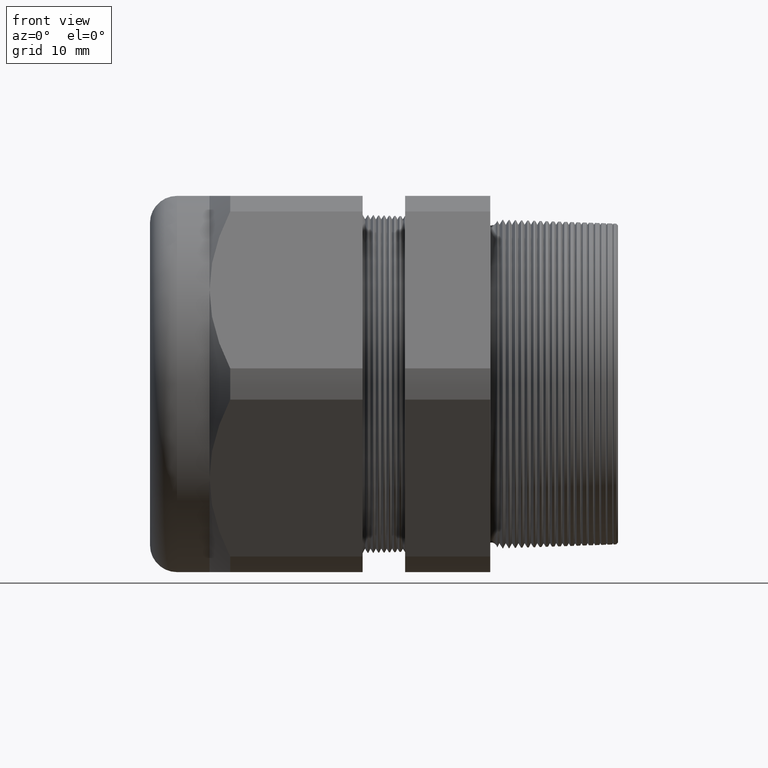
[diagram: clean part render]
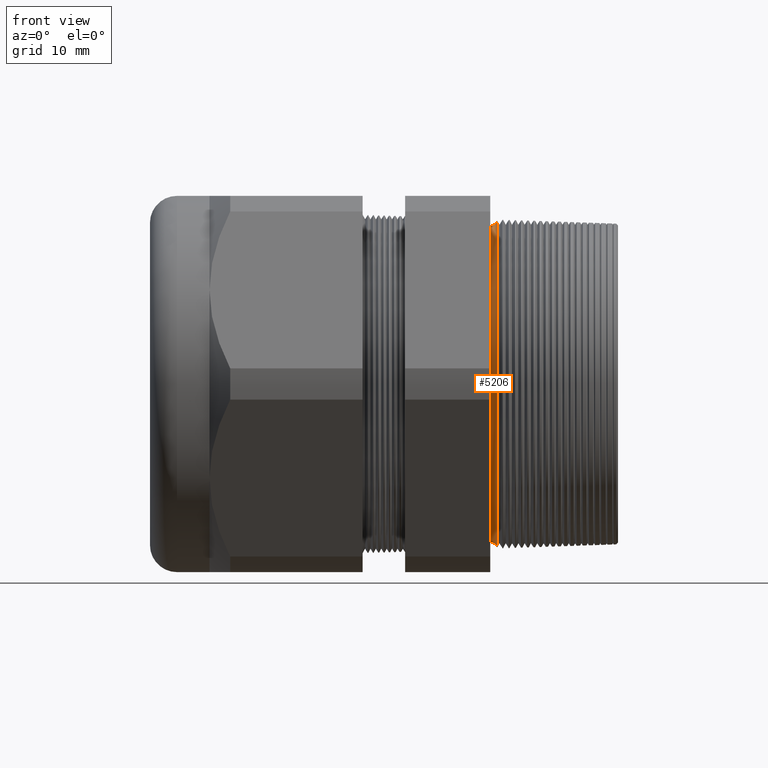
[diagram: same view with one face highlighted and labeled with its STEP entity id]
A machine part, front view. The second image highlights one B-rep face of the part: STEP entity #5206.
In plain terms, the highlighted toroidal blend (fillet) surface has major radius 23.2473 mm and minor (blend) radius 0.889 mm.
Its self-contained STEP definition (entity closure, byte-faithful):
#448 = VERTEX_POINT ( 'NONE', #1275 ) ;
#450 = EDGE_CURVE ( 'NONE', #451, #452, #1274, .T. ) ;
#451 = VERTEX_POINT ( 'NONE', #1268 ) ;
#452 = VERTEX_POINT ( 'NONE', #1267 ) ;
#1267 = CARTESIAN_POINT ( 'NONE',  ( -0.3049999999999999400, 0.0000000000000000000, -0.8802480608060996300 ) ) ;
#1268 = CARTESIAN_POINT ( 'NONE',  ( -0.2708719432804211900, 1.111347761987921800E-016, -0.9074843152831373300 ) ) ;
#1269 = DIRECTION ( 'NONE',  ( 0.0000000000000000000, 0.0000000000000000000, -1.000000000000000000 ) ) ;
#1270 = DIRECTION ( 'NONE',  ( 0.0000000000000000000, -1.000000000000000000, 0.0000000000000000000 ) ) ;
#1272 = CARTESIAN_POINT ( 'NONE',  ( -0.3049999999999999400, 0.0000000000000000000, -0.9152480608060996600 ) ) ;
#1273 = AXIS2_PLACEMENT_3D ( 'NONE', #1272, #1270, #1269 ) ;
#1274 = CIRCLE ( 'NONE', #1273, 0.03500000000000003800 ) ;
#1275 = CARTESIAN_POINT ( 'NONE',  ( -0.3049999999999999400, 1.077992970121854900E-016, 0.8802480608060996300 ) ) ;
#5150 = ORIENTED_EDGE ( 'NONE', *, *, #5200, .T. ) ;
#5161 = EDGE_LOOP ( 'NONE', ( #5150, #5412, #5294, #5304 ) ) ;
#5200 = EDGE_CURVE ( 'NONE', #5204, #448, #6031, .T. ) ;
#5204 = VERTEX_POINT ( 'NONE', #6027 ) ;
#5206 = ADVANCED_FACE ( 'NONE', ( #6021 ), #6020, .F. ) ;
#5294 = ORIENTED_EDGE ( 'NONE', *, *, #450, .F. ) ;
#5295 = EDGE_CURVE ( 'NONE', #5204, #451, #6199, .T. ) ;
#5304 = ORIENTED_EDGE ( 'NONE', *, *, #5295, .F. ) ;
#5319 = EDGE_CURVE ( 'NONE', #448, #452, #6285, .T. ) ;
#5412 = ORIENTED_EDGE ( 'NONE', *, *, #5319, .T. ) ;
#5967 = CARTESIAN_POINT ( 'NONE',  ( -0.3049999999999999400, 1.120855608092012100E-016, 0.9152480608060996600 ) ) ;
#6016 = DIRECTION ( 'NONE',  ( 0.0000000000000000000, 0.0000000000000000000, -1.000000000000000000 ) ) ;
#6017 = DIRECTION ( 'NONE',  ( 1.000000000000000000, 0.0000000000000000000, 0.0000000000000000000 ) ) ;
#6018 = CARTESIAN_POINT ( 'NONE',  ( -0.3049999999999999400, 0.0000000000000000000, 0.0000000000000000000 ) ) ;
#6019 = AXIS2_PLACEMENT_3D ( 'NONE', #6018, #6017, #6016 ) ;
#6020 = TOROIDAL_SURFACE ( 'NONE', #6019, 0.9152480608060996600, 0.03499999999999997600 ) ;
#6021 = FACE_OUTER_BOUND ( 'NONE', #5161, .T. ) ;
#6027 = CARTESIAN_POINT ( 'NONE',  ( -0.2708719432804211900, 0.0000000000000000000, 0.9074843152831373300 ) ) ;
#6028 = DIRECTION ( 'NONE',  ( 0.0000000000000000000, 1.224646799147352500E-016, 1.000000000000000000 ) ) ;
#6029 = DIRECTION ( 'NONE',  ( 0.0000000000000000000, 1.000000000000000000, -1.224646799147353200E-016 ) ) ;
#6030 = AXIS2_PLACEMENT_3D ( 'NONE', #5967, #6029, #6028 ) ;
#6031 = CIRCLE ( 'NONE', #6030, 0.03500000000000003800 ) ;
#6195 = DIRECTION ( 'NONE',  ( 0.0000000000000000000, 0.0000000000000000000, 1.000000000000000000 ) ) ;
#6196 = DIRECTION ( 'NONE',  ( 1.000000000000000000, 0.0000000000000000000, 0.0000000000000000000 ) ) ;
#6197 = CARTESIAN_POINT ( 'NONE',  ( -0.2708719432804211900, 0.0000000000000000000, 0.0000000000000000000 ) ) ;
#6198 = AXIS2_PLACEMENT_3D ( 'NONE', #6197, #6196, #6195 ) ;
#6199 = CIRCLE ( 'NONE', #6198, 0.9074843152831373300 ) ;
#6281 = DIRECTION ( 'NONE',  ( 0.0000000000000000000, 0.0000000000000000000, -1.000000000000000000 ) ) ;
#6282 = DIRECTION ( 'NONE',  ( 1.000000000000000000, 0.0000000000000000000, 0.0000000000000000000 ) ) ;
#6283 = CARTESIAN_POINT ( 'NONE',  ( -0.3049999999999999400, 0.0000000000000000000, 0.0000000000000000000 ) ) ;
#6284 = AXIS2_PLACEMENT_3D ( 'NONE', #6283, #6282, #6281 ) ;
#6285 = CIRCLE ( 'NONE', #6284, 0.8802480608060996300 ) ;